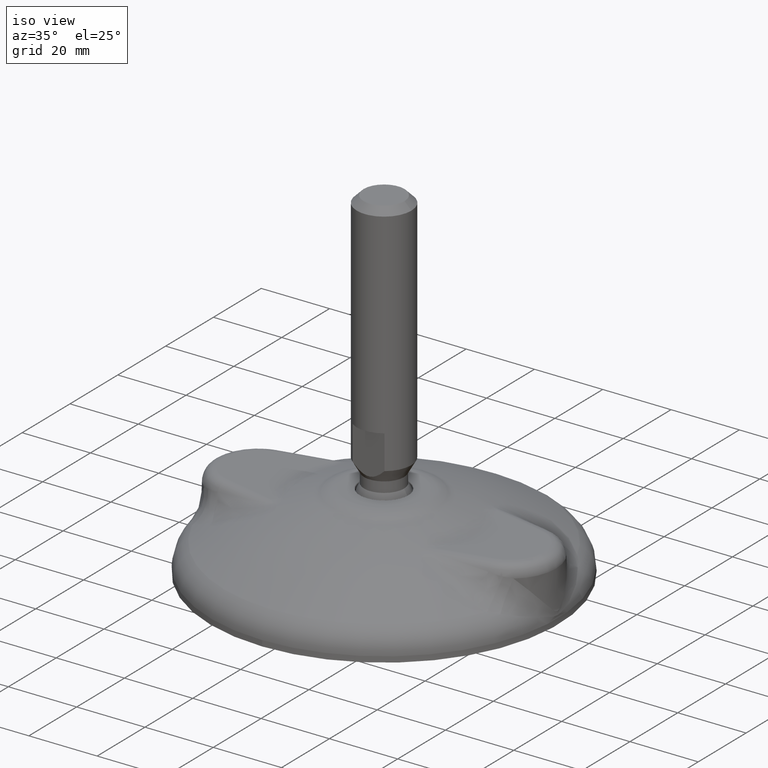
[diagram: clean part render]
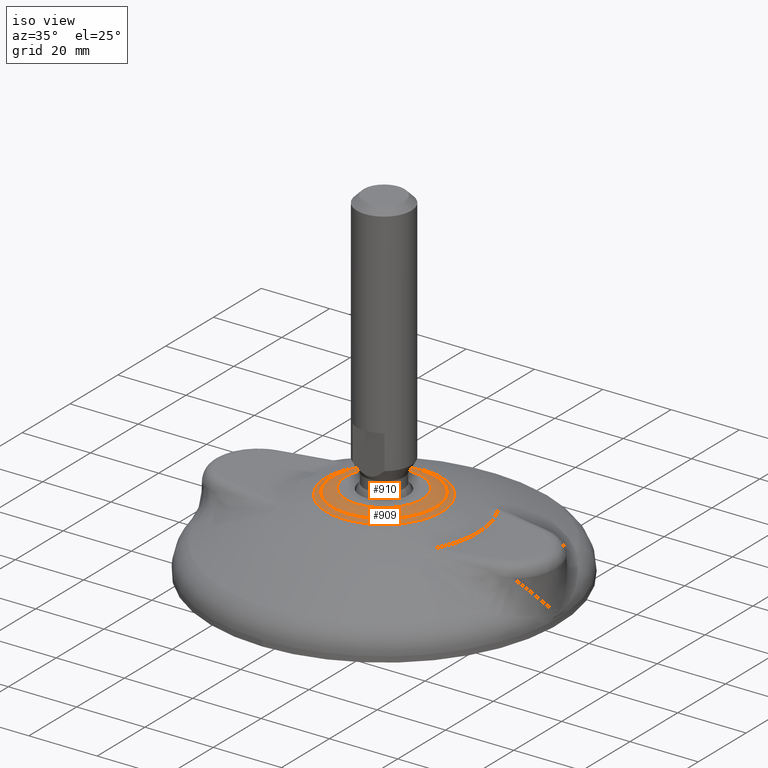
[diagram: same view with one multi-face feature highlighted, each face labeled with its STEP entity id]
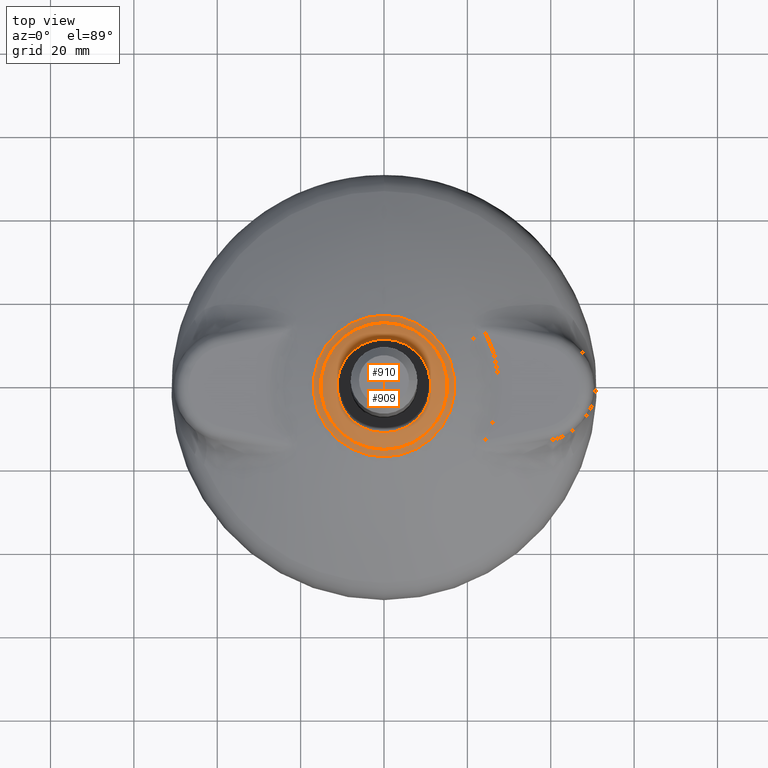
[diagram: same view with one multi-face feature highlighted, each face labeled with its STEP entity id]
A machine part, iso view. The highlighted faces form ONE feature: a constant-radius fillet chain: 2 tangent blend faces with common blend radius 7.5 mm. The faces share edges in the B-rep.
A second angle (top view) of the same feature is appended — it is thin or edge-on in the first view.
Their STEP definitions:
[1] entity #910 (Torus):
#40=TOROIDAL_SURFACE('',#1023,11.2500000000002,8.);
#161=FACE_OUTER_BOUND('',#227,.T.);
#227=EDGE_LOOP('',(#647,#648,#649,#650));
#300=CIRCLE('',#1021,15.2112618341804);
#302=CIRCLE('',#1024,11.2500000000003);
#303=CIRCLE('',#1025,8.);
#398=VERTEX_POINT('',#4175);
#399=VERTEX_POINT('',#4179);
#492=EDGE_CURVE('',#398,#398,#300,.T.);
#494=EDGE_CURVE('',#399,#399,#302,.T.);
#495=EDGE_CURVE('',#399,#398,#303,.T.);
#647=ORIENTED_EDGE('',*,*,#494,.F.);
#648=ORIENTED_EDGE('',*,*,#495,.T.);
#649=ORIENTED_EDGE('',*,*,#492,.T.);
#650=ORIENTED_EDGE('',*,*,#495,.F.);
#910=ADVANCED_FACE('',(#161),#40,.T.);
#1021=AXIS2_PLACEMENT_3D('',#4176,#1188,#1189);
#1023=AXIS2_PLACEMENT_3D('',#4178,#1192,#1193);
#1024=AXIS2_PLACEMENT_3D('',#4180,#1194,#1195);
#1025=AXIS2_PLACEMENT_3D('',#4181,#1196,#1197);
#1188=DIRECTION('center_axis',(0.,1.171453E-15,1.));
#1189=DIRECTION('ref_axis',(0.,-1.,1.171453E-15));
#1192=DIRECTION('center_axis',(0.,1.171453E-15,1.));
#1193=DIRECTION('ref_axis',(0.,-1.,1.10733932845729E-15));
#1194=DIRECTION('center_axis',(0.,1.171453E-15,1.));
#1195=DIRECTION('ref_axis',(0.,-1.,1.171453E-15));
#1196=DIRECTION('center_axis',(-1.,-1.22464679914735E-16,1.43461616680156E-31));
#1197=DIRECTION('ref_axis',(-1.22464679914735E-16,1.,-1.15347846714301E-15));
#4175=CARTESIAN_POINT('',(-1.86284231162213E-15,15.2112618341804,21.4504322563353));
#4176=CARTESIAN_POINT('Origin',(0.,5.025636E-14,21.4504322563353));
#4178=CARTESIAN_POINT('Origin',(0.,1.698608E-14,14.5000074721176));
#4179=CARTESIAN_POINT('',(-1.37772764904081E-15,11.2500000000004,22.5000074721176));
#4180=CARTESIAN_POINT('Origin',(0.,5.271542E-14,22.5000074721176));
#4181=CARTESIAN_POINT('Origin',(-1.3777276490408E-15,11.2500000000002,14.5000074721176));
[2] entity #909 (Torus):
#39=TOROIDAL_SURFACE('',#1020,18.7330000000003,7.);
#160=FACE_OUTER_BOUND('',#226,.T.);
#226=EDGE_LOOP('',(#643,#644,#645,#646));
#291=CIRCLE('',#1005,16.986756733163);
#300=CIRCLE('',#1021,15.2112618341804);
#301=CIRCLE('',#1022,7.);
#378=VERTEX_POINT('',#2720);
#398=VERTEX_POINT('',#4175);
#464=EDGE_CURVE('',#378,#378,#291,.T.);
#492=EDGE_CURVE('',#398,#398,#300,.T.);
#493=EDGE_CURVE('',#398,#378,#301,.T.);
#643=ORIENTED_EDGE('',*,*,#492,.F.);
#644=ORIENTED_EDGE('',*,*,#493,.T.);
#645=ORIENTED_EDGE('',*,*,#464,.T.);
#646=ORIENTED_EDGE('',*,*,#493,.F.);
#909=ADVANCED_FACE('',(#160),#39,.F.);
#1005=AXIS2_PLACEMENT_3D('',#2721,#1153,#1154);
#1020=AXIS2_PLACEMENT_3D('',#4174,#1186,#1187);
#1021=AXIS2_PLACEMENT_3D('',#4176,#1188,#1189);
#1022=AXIS2_PLACEMENT_3D('',#4177,#1190,#1191);
#1153=DIRECTION('center_axis',(0.,1.171453E-15,1.));
#1154=DIRECTION('ref_axis',(0.,-1.,1.171453E-15));
#1186=DIRECTION('center_axis',(0.,1.171453E-15,1.));
#1187=DIRECTION('ref_axis',(0.,-1.,1.10448488051932E-15));
#1188=DIRECTION('center_axis',(0.,1.171453E-15,1.));
#1189=DIRECTION('ref_axis',(0.,-1.,1.171453E-15));
#1190=DIRECTION('center_axis',(1.,1.22464679914735E-16,-1.43461616680156E-31));
#1191=DIRECTION('ref_axis',(-1.22464679914735E-16,1.,-1.20803033806801E-15));
#2720=CARTESIAN_POINT('',(-2.08027772611628E-15,16.986756733163,20.7213177423081));
#2721=CARTESIAN_POINT('Origin',(0.,4.854811E-14,20.7213177423081));
#4174=CARTESIAN_POINT('Origin',(0.,3.221498E-14,27.5000074721176));
#4175=CARTESIAN_POINT('',(-1.86284231162213E-15,15.2112618341804,21.4504322563353));
#4176=CARTESIAN_POINT('Origin',(0.,5.025636E-14,21.4504322563353));
#4177=CARTESIAN_POINT('Origin',(-2.29413084884277E-15,18.7330000000003,
27.5000074721176));